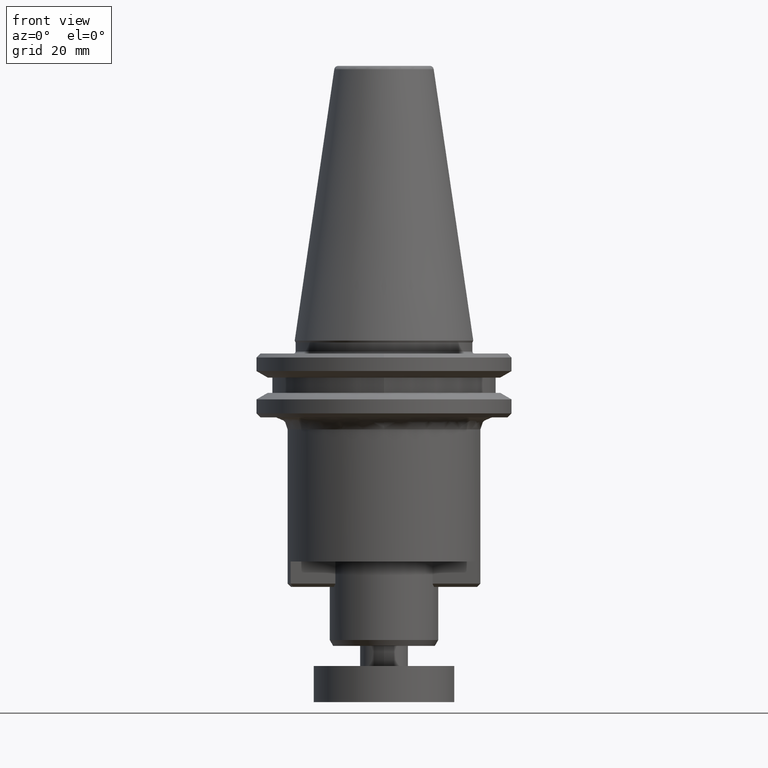
[diagram: clean part render]
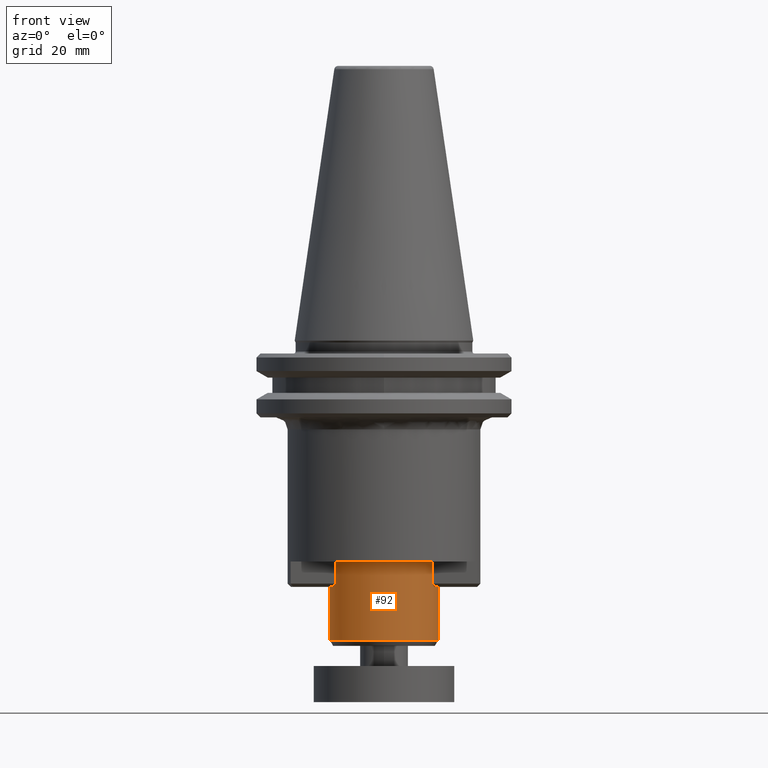
[diagram: same view with one face highlighted and labeled with its STEP entity id]
A machine part, front view. The second image highlights one B-rep face of the part: STEP entity #92.
In plain terms, the highlighted cylindrical surface (partial cylindrical patch) has radius 13.5 mm, axis along (0, 0, 1).
Its self-contained STEP definition (entity closure, byte-faithful):
#4 = EDGE_CURVE ( 'NONE', #1770, #823, #353, .T. ) ;
#19 = VECTOR ( 'NONE', #2096, 1000.000000000000000 ) ;
#71 = LINE ( 'NONE', #1913, #19 ) ;
#92 = ADVANCED_FACE ( 'NONE', ( #329 ), #292, .T. ) ;
#220 = CIRCLE ( 'NONE', #1779, 13.50000000000000000 ) ;
#253 = EDGE_CURVE ( 'NONE', #1086, #605, #259, .T. ) ;
#254 = CARTESIAN_POINT ( 'NONE',  ( 13.50000000000000000, 0.0000000000000000000, -61.29999999999999700 ) ) ;
#259 = CIRCLE ( 'NONE', #1236, 13.50000000000000000 ) ;
#266 = CARTESIAN_POINT ( 'NONE',  ( 12.22370068459302300, -5.737343610651085300, -60.76265638934891200 ) ) ;
#292 = CYLINDRICAL_SURFACE ( 'NONE', #699, 13.50000000000000000 ) ;
#304 = DIRECTION ( 'NONE',  ( -0.0000000000000000000, -0.0000000000000000000, 1.000000000000000000 ) ) ;
#329 = FACE_OUTER_BOUND ( 'NONE', #1702, .T. ) ;
#334 = DIRECTION ( 'NONE',  ( 0.0000000000000000000, 0.0000000000000000000, 1.000000000000000000 ) ) ;
#336 = EDGE_CURVE ( 'NONE', #832, #1870, #1395, .T. ) ;
#353 = CIRCLE ( 'NONE', #1925, 13.49999999981227600 ) ;
#400 = CARTESIAN_POINT ( 'NONE',  ( 0.0000000000000000000, 0.0000000000000000000, -74.52775681389160000 ) ) ;
#422 = CARTESIAN_POINT ( 'NONE',  ( -12.09338662351931900, -5.999999998560221000, -60.50000000287955300 ) ) ;
#429 = VECTOR ( 'NONE', #952, 1000.000000000000000 ) ;
#475 = ORIENTED_EDGE ( 'NONE', *, *, #1814, .T. ) ;
#496 = LINE ( 'NONE', #1386, #573 ) ;
#551 = VERTEX_POINT ( 'NONE', #1191 ) ;
#555 = VERTEX_POINT ( 'NONE', #947 ) ;
#558 = CARTESIAN_POINT ( 'NONE',  ( -12.22370068504321100, -5.737343609664214300, -60.76265639033578500 ) ) ;
#573 = VECTOR ( 'NONE', #2420, 1000.000000000000000 ) ;
#589 = CARTESIAN_POINT ( 'NONE',  ( -13.50000000000000000, 1.653273178848926900E-015, -61.29999999999999700 ) ) ;
#605 = VERTEX_POINT ( 'NONE', #2005 ) ;
#614 = CARTESIAN_POINT ( 'NONE',  ( -12.09338662351931900, -5.999999998560221000, -60.50000000287955300 ) ) ;
#640 = CARTESIAN_POINT ( 'NONE',  ( -5.142719447900805300E-032, 0.0000000000000000000, -61.29999999999999700 ) ) ;
#641 = ORIENTED_EDGE ( 'NONE', *, *, #1536, .F. ) ;
#663 = EDGE_CURVE ( 'NONE', #1770, #1603, #71, .T. ) ;
#699 = AXIS2_PLACEMENT_3D ( 'NONE', #1064, #334, #1746 ) ;
#764 = CARTESIAN_POINT ( 'NONE',  ( 13.49999999981227600, 0.0000000000000000000, -74.52775681389160000 ) ) ;
#795 = ORIENTED_EDGE ( 'NONE', *, *, #336, .T. ) ;
#809 = CARTESIAN_POINT ( 'NONE',  ( -12.34539169290367500, -5.470582608979195300, -61.02941739102080000 ) ) ;
#823 = VERTEX_POINT ( 'NONE', #764 ) ;
#832 = VERTEX_POINT ( 'NONE', #422 ) ;
#841 = DIRECTION ( 'NONE',  ( 1.000000000000000000, 0.0000000000000000000, 0.0000000000000000000 ) ) ;
#846 =( BOUNDED_CURVE ( )  B_SPLINE_CURVE ( 3, ( #2341, #1068, #266, #1676 ),
 .UNSPECIFIED., .F., .T. ) 
 B_SPLINE_CURVE_WITH_KNOTS ( ( 4, 4 ),
 ( 5.107797463477941100, 5.172942972007919400 ),
 .UNSPECIFIED. ) 
 CURVE ( )  GEOMETRIC_REPRESENTATION_ITEM ( )  RATIONAL_B_SPLINE_CURVE ( ( 1.000000000000000000, 0.9996463698278619200, 0.9996463698278619200, 1.000000000000000000 ) ) 
 REPRESENTATION_ITEM ( '' )  );
#897 = DIRECTION ( 'NONE',  ( -1.000000000000000000, 0.0000000000000000000, 0.0000000000000000000 ) ) ;
#947 = CARTESIAN_POINT ( 'NONE',  ( 12.45833054626501700, -5.200000000000000200, -61.29999999999999700 ) ) ;
#952 = DIRECTION ( 'NONE',  ( 6.424901762877064700E-017, 0.0000000000000000000, 1.000000000000000000 ) ) ;
#960 = DIRECTION ( 'NONE',  ( 1.000000000000000000, 0.0000000000000000000, 0.0000000000000000000 ) ) ;
#961 = AXIS2_PLACEMENT_3D ( 'NONE', #640, #1990, #841 ) ;
#1010 = CARTESIAN_POINT ( 'NONE',  ( -5.572713959453807400E-032, 0.0000000000000000000, -61.29999999999999700 ) ) ;
#1027 = EDGE_CURVE ( 'NONE', #1603, #1870, #1993, .T. ) ;
#1064 = CARTESIAN_POINT ( 'NONE',  ( 0.0000000000000000000, 0.0000000000000000000, -76.52775681399998600 ) ) ;
#1068 = CARTESIAN_POINT ( 'NONE',  ( 12.34539169269471200, -5.470582609479834900, -61.02941739052016600 ) ) ;
#1084 = ORIENTED_EDGE ( 'NONE', *, *, #4, .T. ) ;
#1086 = VERTEX_POINT ( 'NONE', #1660 ) ;
#1111 = VERTEX_POINT ( 'NONE', #254 ) ;
#1153 = EDGE_CURVE ( 'NONE', #555, #551, #846, .T. ) ;
#1191 = CARTESIAN_POINT ( 'NONE',  ( 12.09338662279637900, -5.999999999463014400, -60.50000000086808400 ) ) ;
#1201 = DIRECTION ( 'NONE',  ( 1.000000000000000000, 0.0000000000000000000, 0.0000000000000000000 ) ) ;
#1234 = CARTESIAN_POINT ( 'NONE',  ( -13.49999999981227600, 1.653273178837432000E-015, -74.52775681389160000 ) ) ;
#1236 = AXIS2_PLACEMENT_3D ( 'NONE', #1326, #304, #897 ) ;
#1285 = VECTOR ( 'NONE', #1858, 1000.000000000000000 ) ;
#1326 = CARTESIAN_POINT ( 'NONE',  ( 0.0000000000000000000, 0.0000000000000000000, -54.99999999749999100 ) ) ;
#1346 = DIRECTION ( 'NONE',  ( -0.0000000000000000000, -0.0000000000000000000, 1.000000000000000000 ) ) ;
#1386 = CARTESIAN_POINT ( 'NONE',  ( 12.09338662298066300, -5.999999998926028900, -61.29999999999999700 ) ) ;
#1395 =( BOUNDED_CURVE ( )  B_SPLINE_CURVE ( 3, ( #614, #558, #809, #2290 ),
 .UNSPECIFIED., .F., .F. ) 
 B_SPLINE_CURVE_WITH_KNOTS ( ( 4, 4 ),
 ( 1.110242335292157500, 1.175387843701646100 ),
 .UNSPECIFIED. ) 
 CURVE ( )  GEOMETRIC_REPRESENTATION_ITEM ( )  RATIONAL_B_SPLINE_CURVE ( ( 1.000000000000000000, 0.9996463698291698800, 0.9996463698291698800, 1.000000000000000000 ) ) 
 REPRESENTATION_ITEM ( '' )  );
#1403 = ORIENTED_EDGE ( 'NONE', *, *, #1479, .F. ) ;
#1479 = EDGE_CURVE ( 'NONE', #832, #1086, #2285, .T. ) ;
#1536 = EDGE_CURVE ( 'NONE', #605, #551, #496, .T. ) ;
#1598 = LINE ( 'NONE', #2026, #1285 ) ;
#1603 = VERTEX_POINT ( 'NONE', #589 ) ;
#1660 = CARTESIAN_POINT ( 'NONE',  ( -12.09338662307132500, -5.999999999554715300, -55.00000000197500300 ) ) ;
#1676 = CARTESIAN_POINT ( 'NONE',  ( 12.09338662279637900, -5.999999999463014400, -60.50000000086808400 ) ) ;
#1684 = ORIENTED_EDGE ( 'NONE', *, *, #663, .F. ) ;
#1694 = CARTESIAN_POINT ( 'NONE',  ( -12.45833054626501700, -5.200000000000000200, -61.29999999999999700 ) ) ;
#1702 = EDGE_LOOP ( 'NONE', ( #1684, #1084, #475, #1849, #2245, #641, #2189, #1403, #795, #2306 ) ) ;
#1746 = DIRECTION ( 'NONE',  ( 1.000000000000000000, 0.0000000000000000000, 0.0000000000000000000 ) ) ;
#1770 = VERTEX_POINT ( 'NONE', #1234 ) ;
#1779 = AXIS2_PLACEMENT_3D ( 'NONE', #1010, #2291, #1201 ) ;
#1814 = EDGE_CURVE ( 'NONE', #823, #1111, #1598, .T. ) ;
#1849 = ORIENTED_EDGE ( 'NONE', *, *, #2431, .F. ) ;
#1858 = DIRECTION ( 'NONE',  ( 0.0000000000000000000, 0.0000000000000000000, 1.000000000000000000 ) ) ;
#1870 = VERTEX_POINT ( 'NONE', #1694 ) ;
#1913 = CARTESIAN_POINT ( 'NONE',  ( -13.50000000000000000, 1.653273178848926900E-015, -76.52775681399998600 ) ) ;
#1925 = AXIS2_PLACEMENT_3D ( 'NONE', #400, #1346, #960 ) ;
#1990 = DIRECTION ( 'NONE',  ( 6.424901762877064700E-017, 0.0000000000000000000, 1.000000000000000000 ) ) ;
#1993 = CIRCLE ( 'NONE', #961, 13.50000000000000000 ) ;
#2005 = CARTESIAN_POINT ( 'NONE',  ( 12.09338662271424200, -5.999999999463014400, -55.00000000394999900 ) ) ;
#2026 = CARTESIAN_POINT ( 'NONE',  ( 13.50000000000000000, 0.0000000000000000000, -76.52775681399998600 ) ) ;
#2081 = CARTESIAN_POINT ( 'NONE',  ( -12.09338662387648500, -5.999999997120442100, -61.29999999999999700 ) ) ;
#2096 = DIRECTION ( 'NONE',  ( 0.0000000000000000000, 0.0000000000000000000, 1.000000000000000000 ) ) ;
#2189 = ORIENTED_EDGE ( 'NONE', *, *, #253, .F. ) ;
#2245 = ORIENTED_EDGE ( 'NONE', *, *, #1153, .T. ) ;
#2285 = LINE ( 'NONE', #2081, #429 ) ;
#2290 = CARTESIAN_POINT ( 'NONE',  ( -12.45833054626501700, -5.200000000000000200, -61.29999999999999700 ) ) ;
#2291 = DIRECTION ( 'NONE',  ( 6.424901762877064700E-017, 0.0000000000000000000, 1.000000000000000000 ) ) ;
#2306 = ORIENTED_EDGE ( 'NONE', *, *, #1027, .F. ) ;
#2341 = CARTESIAN_POINT ( 'NONE',  ( 12.45833054626501700, -5.200000000000000200, -61.29999999999999700 ) ) ;
#2420 = DIRECTION ( 'NONE',  ( -6.424901762877064700E-017, -0.0000000000000000000, -1.000000000000000000 ) ) ;
#2431 = EDGE_CURVE ( 'NONE', #555, #1111, #220, .T. ) ;